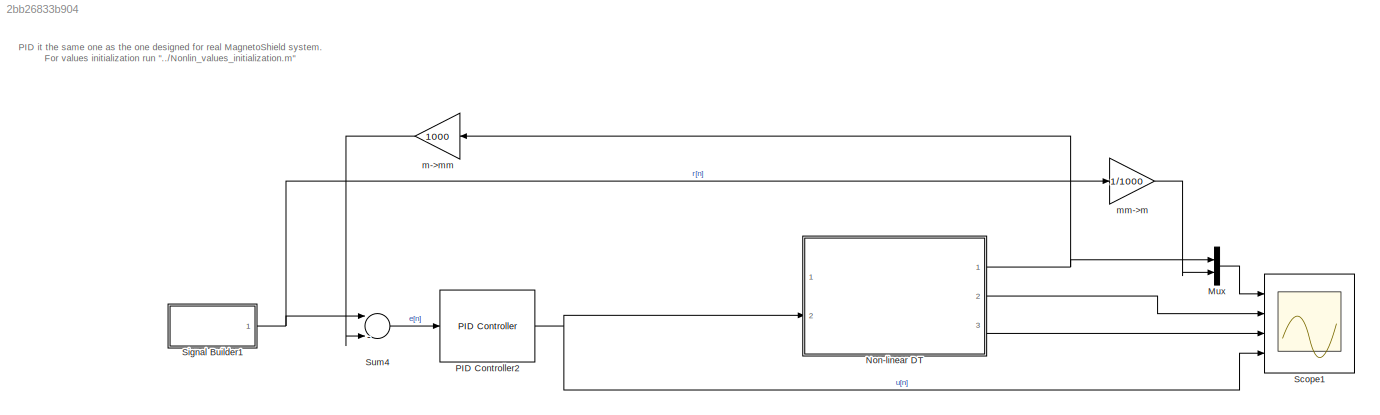
MODEL slx_2bb26833b904
KIND model
CONFIG AbsTol = auto
CONFIG EnableMultiTasking = off
CONFIG FixedStep = auto
CONFIG MaxStep = auto
CONFIG MinStep = auto
CONFIG RelTol = 1e-3
CONFIG SampleTimeConstraint = Unconstrained
CONFIG Solver = VariableStepAuto
CONFIG SolverName = VariableStepAuto
CONFIG StartTime = 0.0
CONFIG StopTime = 15
BLOCK [Mux] Mux
  DisplayOption = bar
  Inputs = 2
  Ports = [2, 1]
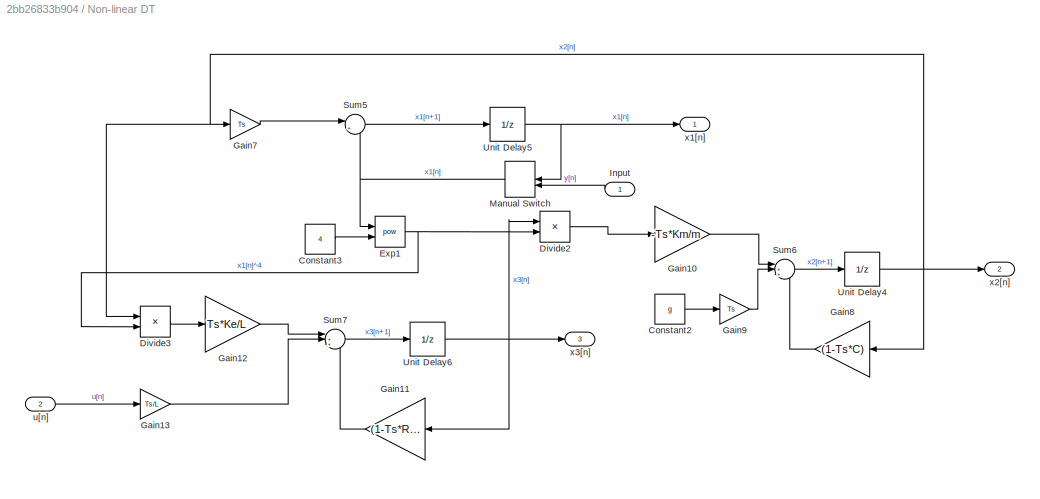
BLOCK [SubSystem] Non-linear DT
  Ports = [2, 3]
  RequestExecContextInheritance = off
BLOCK [Constant] Non-linear DT/Constant2
  Value = g
BLOCK [Constant] Non-linear DT/Constant3
  Value = 4
BLOCK [Product] Non-linear DT/Divide2
  InputSameDT = off
  Inputs = */
  OutDataTypeStr = Inherit: Inherit via internal rule
  Ports = [2, 1]
  RndMeth = Floor
  SaturateOnIntegerOverflow = off
BLOCK [Product] Non-linear DT/Divide3
  InputSameDT = off
  Inputs = */
  OutDataTypeStr = Inherit: Inherit via internal rule
  Ports = [2, 1]
  RndMeth = Floor
  SaturateOnIntegerOverflow = off
BLOCK [Math] Non-linear DT/Exp1
  Operator = pow
  Ports = [2, 1]
BLOCK [Gain] Non-linear DT/Gain10
  Gain = -Ts*Km/m
  OutDataTypeStr = Inherit: Inherit via internal rule
  ParamDataTypeStr = Inherit: Inherit via internal rule
  SaturateOnIntegerOverflow = off
BLOCK [Gain] Non-linear DT/Gain11
  Gain = (1-Ts*R/L)
  OutDataTypeStr = Inherit: Inherit via internal rule
  ParamDataTypeStr = Inherit: Inherit via internal rule
  SaturateOnIntegerOverflow = off
BLOCK [Gain] Non-linear DT/Gain12
  Gain = Ts*Ke/L
  OutDataTypeStr = Inherit: Inherit via internal rule
  ParamDataTypeStr = Inherit: Inherit via internal rule
  SaturateOnIntegerOverflow = off
BLOCK [Gain] Non-linear DT/Gain13
  Gain = Ts/L
  OutDataTypeStr = Inherit: Inherit via internal rule
  ParamDataTypeStr = Inherit: Inherit via internal rule
  SaturateOnIntegerOverflow = off
BLOCK [Gain] Non-linear DT/Gain7
  Gain = Ts
  OutDataTypeStr = Inherit: Inherit via internal rule
  ParamDataTypeStr = Inherit: Inherit via internal rule
  SaturateOnIntegerOverflow = off
BLOCK [Gain] Non-linear DT/Gain8
  Gain = (1-Ts*C)
  OutDataTypeStr = Inherit: Inherit via internal rule
  ParamDataTypeStr = Inherit: Inherit via internal rule
  SaturateOnIntegerOverflow = off
BLOCK [Gain] Non-linear DT/Gain9
  Gain = Ts
  OutDataTypeStr = Inherit: Inherit via internal rule
  ParamDataTypeStr = Inherit: Inherit via internal rule
  SaturateOnIntegerOverflow = off
BLOCK [Inport] Non-linear DT/Input
  IconDisplay = Signal name
BLOCK [ManualSwitch] Non-linear DT/Manual Switch
BLOCK [Sum] Non-linear DT/Sum5
  IconShape = round
  InputSameDT = off
  Inputs = |++
  OutDataTypeStr = Inherit: Inherit via internal rule
  Ports = [2, 1]
  SaturateOnIntegerOverflow = off
BLOCK [Sum] Non-linear DT/Sum6
  IconShape = round
  InputSameDT = off
  Inputs = |+++
  OutDataTypeStr = Inherit: Inherit via internal rule
  Ports = [3, 1]
  SaturateOnIntegerOverflow = off
BLOCK [Sum] Non-linear DT/Sum7
  IconShape = round
  InputSameDT = off
  Inputs = |+++
  OutDataTypeStr = Inherit: Inherit via internal rule
  Ports = [3, 1]
  SaturateOnIntegerOverflow = off
BLOCK [UnitDelay] Non-linear DT/Unit Delay4
  HasFrameUpgradeWarning = on
  SampleTime = -1
BLOCK [UnitDelay] Non-linear DT/Unit Delay5
  HasFrameUpgradeWarning = on
  InitialCondition = 0.017
  SampleTime = -1
BLOCK [UnitDelay] Non-linear DT/Unit Delay6
  HasFrameUpgradeWarning = on
  SampleTime = -1
BLOCK [Inport] Non-linear DT/u[n]
  IconDisplay = Signal name
  Port = 2
BLOCK [Outport] Non-linear DT/x1[n]
  IconDisplay = Signal name
BLOCK [Outport] Non-linear DT/x2[n]
  IconDisplay = Signal name
  Port = 2
BLOCK [Outport] Non-linear DT/x3[n]
  IconDisplay = Signal name
  Port = 3
BLOCK [Reference] PID Controller2  REF=simulink/Continuous/PID Controller
  Ports = [1, 1]
  SourceBlock = simulink/Continuous/PID Controller
  SourceProductBaseCode = SL
  SourceType = PID 1dof
BLOCK [Scope] Scope1
  Floating = off
  NumInputPorts = 4
  Ports = [4]
  ScopeSpecificationString = Simulink.scopes.TimeScopeBlockCfg('CurrentConfiguration', extmgr.ConfigurationSet(extmgr.Configuration('Core','General UI',true),extmgr.Configuration('Core','Source UI',true),extmgr.Configuration('Sources','WiredSimulink',true,'DataLogging',true,'DataLoggingSaveFormat','StructureWithTime'),extmgr.Configuration('Visuals','Time Domain',true,'SerializedDisplays',{struct('MinYLimReal','0.01137','MaxYL...<+3482ch>
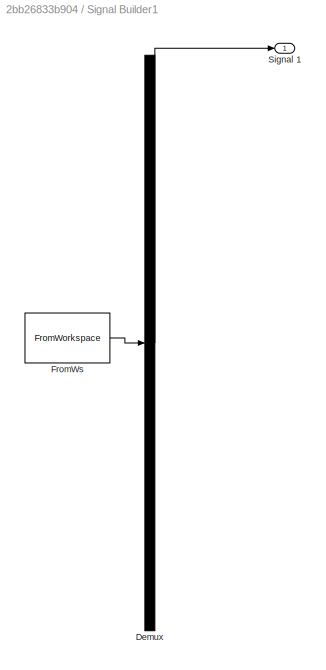
BLOCK [SubSystem] Signal Builder1
  ClipboardFcn = sigbuilder_block('clipboard');
  CloseFcn = sigbuilder_block('close');
  ContinueFcn = sigbuilder_block('continue');
  CopyFcn = sigbuilder_block('copy');
  DeleteFcn = sigbuilder_block('delete');
  LoadFcn = sigbuilder_block('load');
  MaskHideContents = on
  ModelCloseFcn = sigbuilder_block('modelClose');
  NameChangeFcn = sigbuilder_block('namechange');
  OpenFcn = sigbuilder_block('open',[434.4 169.8 550.8 400.2 ]);
  PauseFcn = sigbuilder_block('pause');
  Ports = [0, 1]
  PreSaveFcn = sigbuilder_block('preSave');
  RequestExecContextInheritance = off
  StartFcn = sigbuilder_block('start');
  StopFcn = sigbuilder_block('stop');
  Tag = STV Subsys
BLOCK [Demux] Signal Builder1/Demux
  Outputs = 1
  Ports = [1, 1]
  Tag = STV Demux
BLOCK [FromWorkspace] Signal Builder1/FromWs
  SampleTime = 0
  Tag = STV FromWs
  VariableName = tuvar
  ZeroCross = on
BLOCK [Outport] Signal Builder1/Signal 1
  IconDisplay = Port number
  Tag = STV Outport
BLOCK [Sum] Sum4
  InputSameDT = off
  Inputs = |-+
  OutDataTypeStr = Inherit: Inherit via internal rule
  Ports = [2, 1]
  SaturateOnIntegerOverflow = off
BLOCK [Gain] m->mm
  Gain = 1000
  OutDataTypeStr = Inherit: Inherit via internal rule
  ParamDataTypeStr = Inherit: Inherit via internal rule
  SaturateOnIntegerOverflow = off
BLOCK [Gain] mm->m
  Gain = 1/1000
  OutDataTypeStr = Inherit: Inherit via internal rule
  ParamDataTypeStr = Inherit: Inherit via internal rule
  SaturateOnIntegerOverflow = off
ANNOTATION (root): PID it the same one as the one designed for real MagnetoShield system. For values initialization run "../Nonlin_values_initialization.m"
LINE Mux:1 -> Scope1:1
LINE Non-linear DT/Constant2:1 -> Non-linear DT/Gain9:1
LINE Non-linear DT/Constant3:1 -> Non-linear DT/Exp1:2
LINE Non-linear DT/Divide2:1 -> Non-linear DT/Gain10:1
LINE Non-linear DT/Divide3:1 -> Non-linear DT/Gain12:1
NET Non-linear DT/Exp1:1 -> Non-linear DT/Divide2:2, Non-linear DT/Divide3:2
LINE Non-linear DT/Gain10:1 -> Non-linear DT/Sum6:1
LINE Non-linear DT/Gain11:1 -> Non-linear DT/Sum7:3
LINE Non-linear DT/Gain12:1 -> Non-linear DT/Sum7:1
LINE Non-linear DT/Gain13:1 -> Non-linear DT/Sum7:2
LINE Non-linear DT/Gain7:1 -> Non-linear DT/Sum5:1
LINE Non-linear DT/Gain8:1 -> Non-linear DT/Sum6:3
LINE Non-linear DT/Gain9:1 -> Non-linear DT/Sum6:2
LINE Non-linear DT/Input:1 -> Non-linear DT/Manual Switch:2
NET Non-linear DT/Manual Switch:1 -> Non-linear DT/Exp1:1, Non-linear DT/Sum5:2
LINE Non-linear DT/Sum5:1 -> Non-linear DT/Unit Delay5:1
LINE Non-linear DT/Sum6:1 -> Non-linear DT/Unit Delay4:1
LINE Non-linear DT/Sum7:1 -> Non-linear DT/Unit Delay6:1
NET Non-linear DT/Unit Delay4:1 -> Non-linear DT/Divide3:1, Non-linear DT/Gain7:1, Non-linear DT/Gain8:1, Non-linear DT/x2[n]:1
NET Non-linear DT/Unit Delay5:1 -> Non-linear DT/Manual Switch:1, Non-linear DT/x1[n]:1
NET Non-linear DT/Unit Delay6:1 -> Non-linear DT/Divide2:1, Non-linear DT/Gain11:1, Non-linear DT/x3[n]:1
LINE Non-linear DT/u[n]:1 -> Non-linear DT/Gain13:1
NET Non-linear DT:1 -> Mux:1, m->mm:1
LINE Non-linear DT:2 -> Scope1:2
LINE Non-linear DT:3 -> Scope1:3
NET PID Controller2:1 -> Non-linear DT:2, Scope1:4
NET Signal Builder1:1 -> Sum4:1, mm->m:1
LINE Sum4:1 -> PID Controller2:1
LINE m->mm:1 -> Sum4:2
LINE mm->m:1 -> Mux:2
note: NET lines group one-source signal fan-out (src -> all destinations, sorted); 1:1 wires keep LINE
